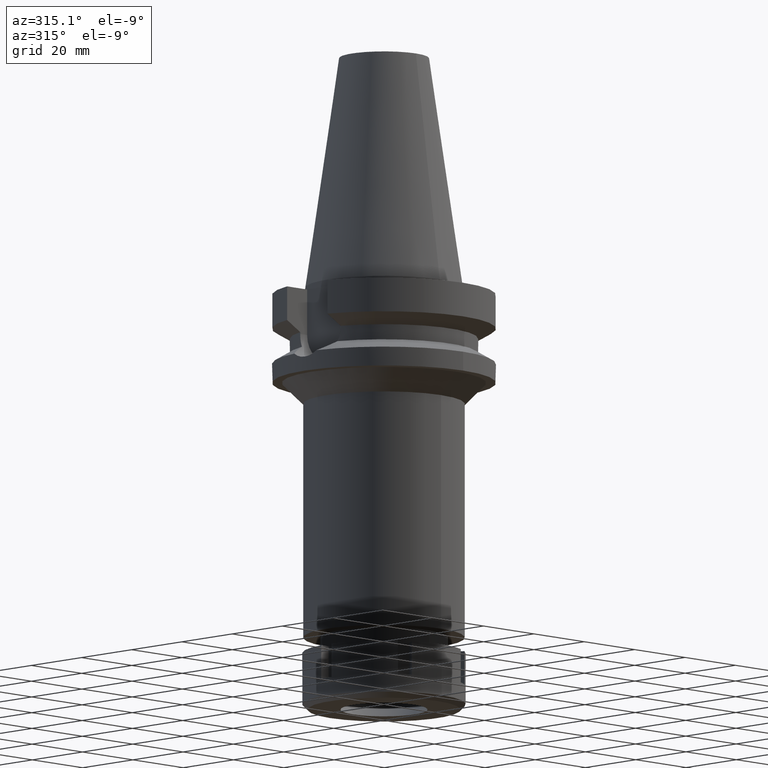
[diagram: clean part render]
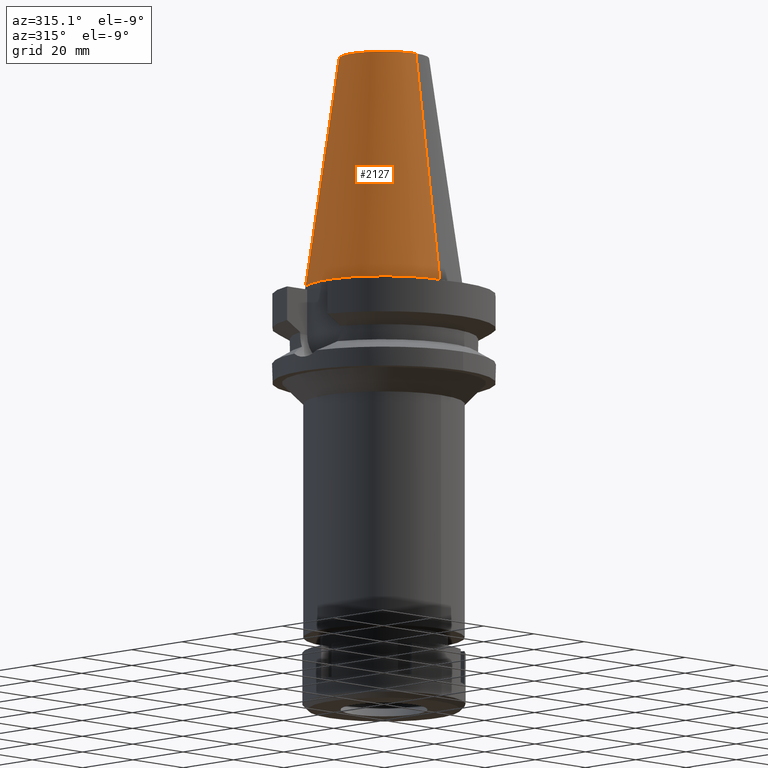
[diagram: same view with one face highlighted and labeled with its STEP entity id]
A machine part, auxiliary view. The second image highlights one B-rep face of the part: STEP entity #2127.
In plain terms, the highlighted conical surface has half-angle 8.297 deg.
Its self-contained STEP definition (entity closure, byte-faithful):
#35 = LINE ( 'NONE', #1180, #3052 ) ;
#255 = CARTESIAN_POINT ( 'NONE',  ( 0.0000000000000000000, -22.22500000000000142, 2.842170943039999687E-14 ) ) ;
#398 = FACE_OUTER_BOUND ( 'NONE', #1786, .T. ) ;
#404 = CIRCLE ( 'NONE', #2340, 12.68766899429999917 ) ;
#590 = CARTESIAN_POINT ( 'NONE',  ( 0.0000000000000000000, -12.68766899429999917, 65.40000000000000568 ) ) ;
#904 = DIRECTION ( 'NONE',  ( 0.0000000000000000000, 0.0000000000000000000, -1.000000000000000000 ) ) ;
#1068 = CARTESIAN_POINT ( 'NONE',  ( 0.0000000000000000000, 1.625106302469000024E-14, 65.40000000000000568 ) ) ;
#1077 = CARTESIAN_POINT ( 'NONE',  ( 0.0000000000000000000, 1.625106302469000024E-14, 2.842170943039999687E-14 ) ) ;
#1180 = CARTESIAN_POINT ( 'NONE',  ( 0.0000000000000000000, 12.68766899429999917, 65.40000000000000568 ) ) ;
#1241 = ORIENTED_EDGE ( 'NONE', *, *, #1445, .F. ) ;
#1348 = ORIENTED_EDGE ( 'NONE', *, *, #3198, .T. ) ;
#1353 = DIRECTION ( 'NONE',  ( 0.0000000000000000000, 0.0000000000000000000, -1.000000000000000000 ) ) ;
#1413 = CIRCLE ( 'NONE', #2060, 22.22500000000000142 ) ;
#1445 = EDGE_CURVE ( 'NONE', #2998, #1893, #1413, .T. ) ;
#1738 = AXIS2_PLACEMENT_3D ( 'NONE', #2324, #904, #1751 ) ;
#1751 = DIRECTION ( 'NONE',  ( 0.0000000000000000000, -1.000000000000000000, 0.0000000000000000000 ) ) ;
#1786 = EDGE_LOOP ( 'NONE', ( #1241, #2311, #2621, #1348 ) ) ;
#1893 = VERTEX_POINT ( 'NONE', #2689 ) ;
#1968 = CONICAL_SURFACE ( 'NONE', #1738, 17.45633449714999941, 0.1448099680379422438 ) ;
#2019 = DIRECTION ( 'NONE',  ( 0.0000000000000000000, 0.1443043893539925626, -0.9895333461855498891 ) ) ;
#2060 = AXIS2_PLACEMENT_3D ( 'NONE', #1077, #1353, #2480 ) ;
#2099 = VERTEX_POINT ( 'NONE', #2628 ) ;
#2127 = ADVANCED_FACE ( 'NONE', ( #398 ), #1968, .T. ) ;
#2267 = LINE ( 'NONE', #590, #2750 ) ;
#2311 = ORIENTED_EDGE ( 'NONE', *, *, #2591, .F. ) ;
#2324 = CARTESIAN_POINT ( 'NONE',  ( 0.0000000000000000000, 1.625106302469000024E-14, 32.70000000000000284 ) ) ;
#2340 = AXIS2_PLACEMENT_3D ( 'NONE', #1068, #2701, #3028 ) ;
#2362 = EDGE_CURVE ( 'NONE', #2099, #2814, #404, .T. ) ;
#2480 = DIRECTION ( 'NONE',  ( 0.0000000000000000000, -1.000000000000000000, 0.0000000000000000000 ) ) ;
#2591 = EDGE_CURVE ( 'NONE', #2099, #2998, #2267, .T. ) ;
#2621 = ORIENTED_EDGE ( 'NONE', *, *, #2362, .T. ) ;
#2628 = CARTESIAN_POINT ( 'NONE',  ( 0.0000000000000000000, -12.68766899429999917, 65.40000000000000568 ) ) ;
#2689 = CARTESIAN_POINT ( 'NONE',  ( 0.0000000000000000000, 22.22500000000000142, 9.947598300640998705E-14 ) ) ;
#2701 = DIRECTION ( 'NONE',  ( 0.0000000000000000000, 0.0000000000000000000, -1.000000000000000000 ) ) ;
#2750 = VECTOR ( 'NONE', #3088, 1000.000000000000114 ) ;
#2814 = VERTEX_POINT ( 'NONE', #2944 ) ;
#2944 = CARTESIAN_POINT ( 'NONE',  ( 0.0000000000000000000, 12.68766899429999917, 65.40000000000000568 ) ) ;
#2998 = VERTEX_POINT ( 'NONE', #255 ) ;
#3028 = DIRECTION ( 'NONE',  ( 0.0000000000000000000, -1.000000000000000000, 0.0000000000000000000 ) ) ;
#3052 = VECTOR ( 'NONE', #2019, 1000.000000000000114 ) ;
#3088 = DIRECTION ( 'NONE',  ( 0.0000000000000000000, -0.1443043893539925626, -0.9895333461855498891 ) ) ;
#3198 = EDGE_CURVE ( 'NONE', #2814, #1893, #35, .T. ) ;